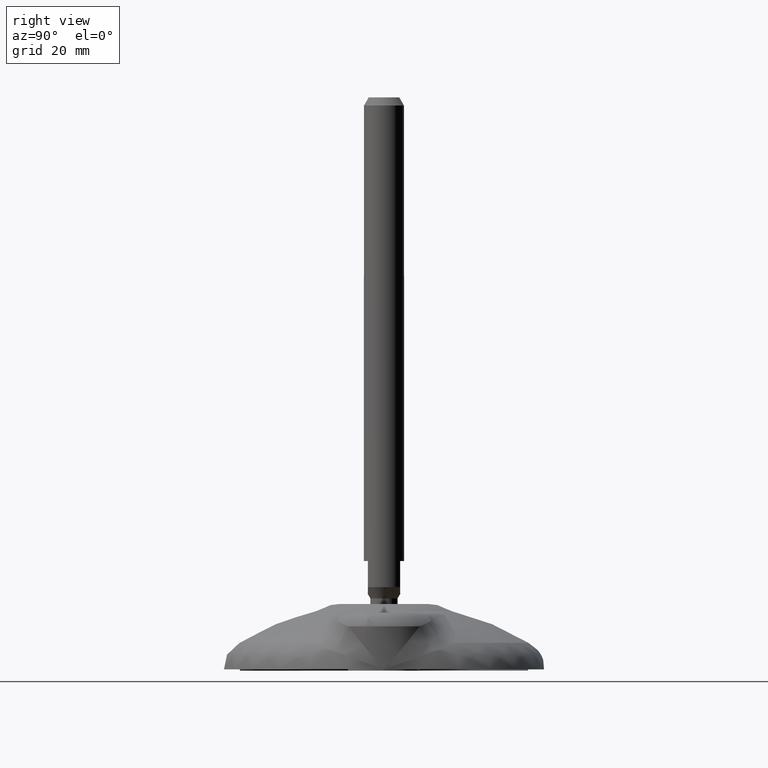
[diagram: clean part render]
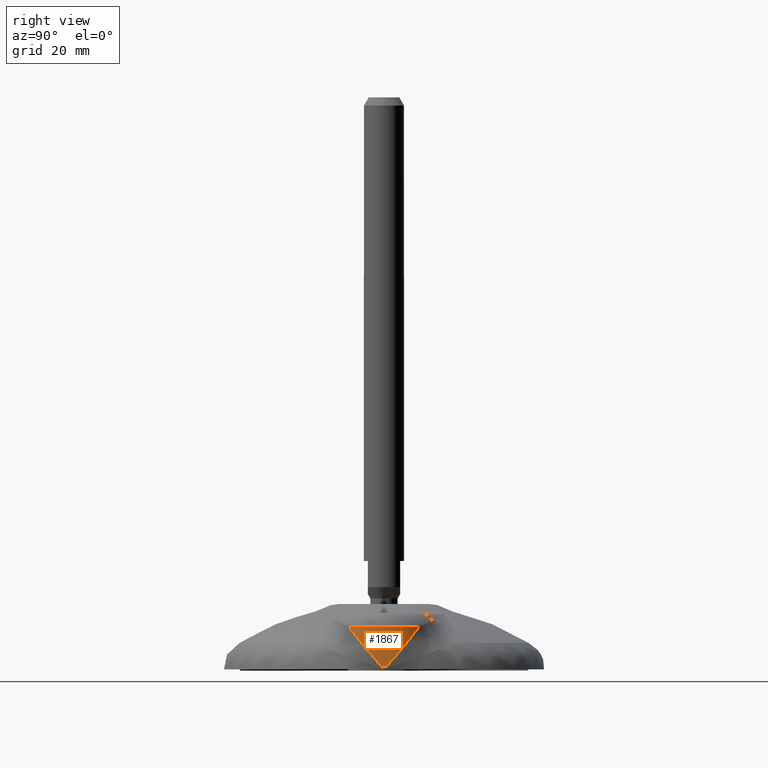
[diagram: same view with one face highlighted and labeled with its STEP entity id]
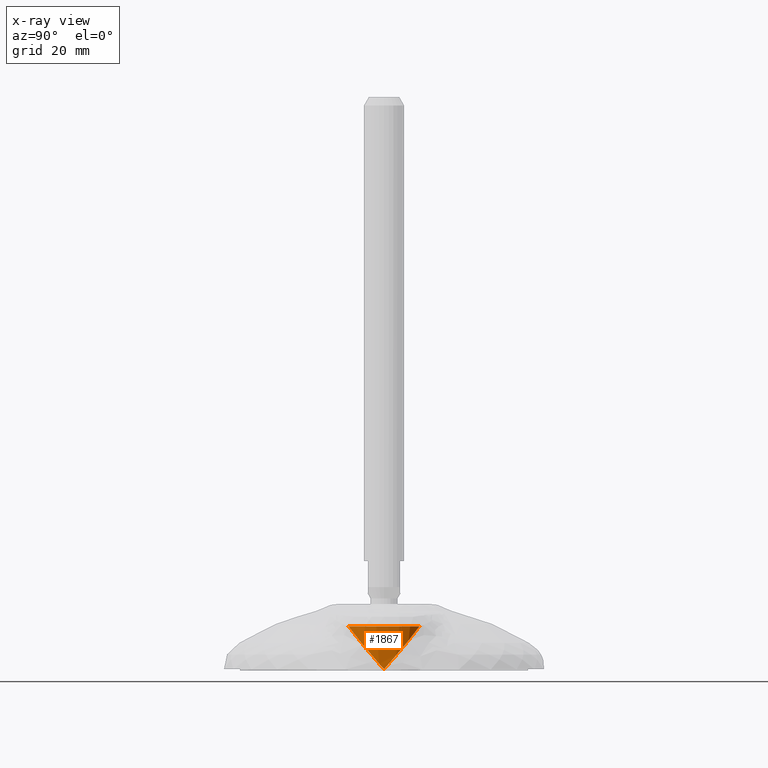
[diagram: x-ray of the same camera — body ghosted, the highlighted face saturated]
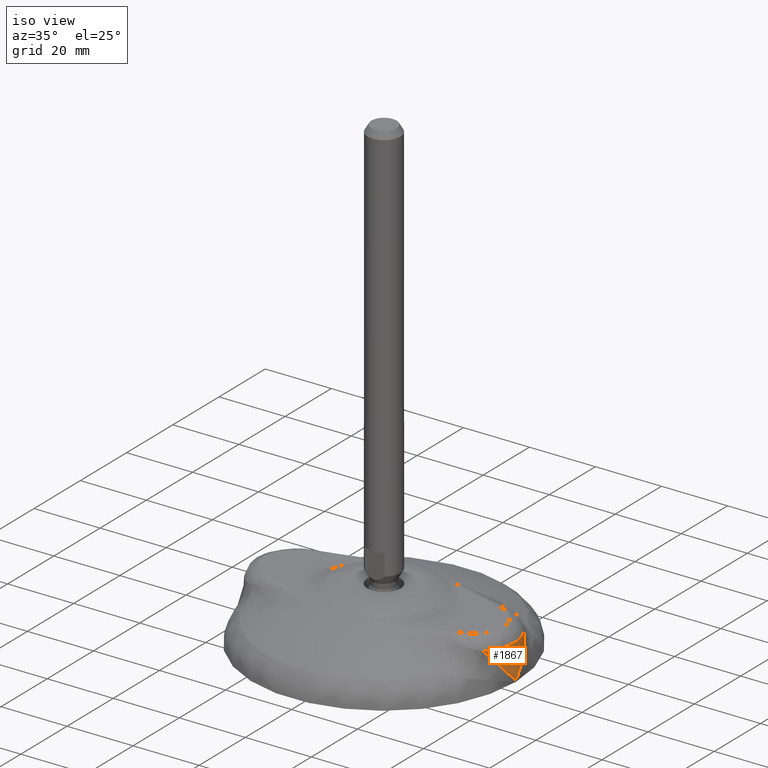
[diagram: same view with one face highlighted and labeled with its STEP entity id]
A machine part, right view. The second image highlights one B-rep face of the part: STEP entity #1867.
The next image is the same camera in x-ray: the body ghosted, the highlighted face saturated — about 0% of this face is hidden behind the body in this view.
A second angle (iso view) of the same face is appended — the face is thin or edge-on in the first view.
In plain terms, the highlighted face is a freeform B-spline surface patch.
Its self-contained STEP definition (entity closure, byte-faithful):
#1665=CARTESIAN_POINT('',(27.000022896699978,0.0,372.409588548589170));
#1666=CARTESIAN_POINT('',(27.000022896699978,0.0,372.409588548589230));
#1667=CARTESIAN_POINT('',(27.000022896699978,0.0,372.409588548589170));
#1668=CARTESIAN_POINT('',(27.000022896699978,0.0,372.409588548589230));
#1669=CARTESIAN_POINT('',(27.000022896699978,0.0,372.409588548589170));
#1670=CARTESIAN_POINT('',(27.000022896699978,0.0,372.409588548589230));
#1671=CARTESIAN_POINT('',(27.000022896699978,0.0,372.409588548589170));
#1672=CARTESIAN_POINT('',(27.000022896699978,0.0,372.409588548589230));
#1673=CARTESIAN_POINT('',(27.000022896699978,0.0,372.409588548589170));
#1674=CARTESIAN_POINT('',(13.356412018743518,0.003613416297616,-18.292321948395568));
#1675=CARTESIAN_POINT('',(13.360025435041134,13.647224294254078,-18.292321948395568));
#1676=CARTESIAN_POINT('',(27.003636312997592,13.643610877956460,-18.292321948395568));
#1677=CARTESIAN_POINT('',(40.647247190954054,13.639997461658844,-18.292321948395568));
#1678=CARTESIAN_POINT('',(40.643633774656436,-0.003613416297616,-18.292321948395568));
#1679=CARTESIAN_POINT('',(40.640020358358818,-13.647224294254078,-18.292321948395568));
#1680=CARTESIAN_POINT('',(26.996409480402363,-13.643610877956460,-18.292321948395568));
#1681=CARTESIAN_POINT('',(13.352798602445901,-13.639997461658844,-18.292321948395568));
#1682=CARTESIAN_POINT('',(13.356412018743518,0.003613416297616,-18.292321948395568));
#1690=(BOUNDED_SURFACE()B_SPLINE_SURFACE(2,1,((#1665,#1674),(#1666,#1675),(#1667,#1676),(#1668,#1677),(#1669,#1678),(#1670,#1679),(#1671,#1680),(#1672,#1681),(#1673,#1682)),.UNSPECIFIED.,.T.,.F.,.U.)B_SPLINE_SURFACE_WITH_KNOTS((3,2,2,2,3),(2,2),(0.0,0.250000000000000,0.500000000000000,0.750000000000000,1.0),(0.0,1.0),.UNSPECIFIED.)GEOMETRIC_REPRESENTATION_ITEM()RATIONAL_B_SPLINE_SURFACE(((1.0,1.0),(0.707106781186548,0.707106781186548),(1.0,1.0),(0.707106781186548,0.707106781186548),(1.0,1.0),(0.707106781186548,0.707106781186548),(1.0,1.0),(0.707106781186548,0.707106781186548),(1.0,1.0)))REPRESENTATION_ITEM('')SURFACE());
#1691=CARTESIAN_POINT('',(36.066250192417407,8.780379743001353,10.952148238458690));
#1692=VERTEX_POINT('',#1691);
#1693=CARTESIAN_POINT('',(36.058307408992100,-8.790435452422750,10.952148238458719));
#1694=VERTEX_POINT('',#1693);
#1695=CARTESIAN_POINT('',(36.067181513083916,8.781281697431407,10.952148238458753));
#1696=CARTESIAN_POINT('',(36.629084763783410,8.201083748937716,10.952148238458753));
#1697=CARTESIAN_POINT('',(37.135117625331972,7.566802076676548,10.952148238458760));
#1698=CARTESIAN_POINT('',(38.018052250675701,6.211530226746488,10.952148238458753));
#1699=CARTESIAN_POINT('',(38.394590328135799,5.490347134136302,10.952148238458753));
#1700=CARTESIAN_POINT('',(39.002775240274708,3.989237368428677,10.952148238458760));
#1701=CARTESIAN_POINT('',(39.234408188589136,3.209344969376574,10.952148238458753));
#1702=CARTESIAN_POINT('',(39.544221534632655,1.619616971677109,10.952148238458753));
#1703=CARTESIAN_POINT('',(39.622394858557456,0.809817670448327,10.952148238458753));
#1704=CARTESIAN_POINT('',(39.622394843136917,-0.809817910803280,10.952148238458760));
#1705=CARTESIAN_POINT('',(39.544221503791924,-1.619617210543510,10.952148238458753));
#1706=CARTESIAN_POINT('',(39.234408127476840,-3.209345202343516,10.952148238458753));
#1707=CARTESIAN_POINT('',(39.002775164311714,-3.989237596984869,10.952148238458753));
#1708=CARTESIAN_POINT('',(38.394590223588686,-5.490347351111450,10.952148238458760));
#1709=CARTESIAN_POINT('',(38.018052132395873,-6.211530436551582,10.952148238458753));
#1710=CARTESIAN_POINT('',(37.133956659776644,-7.568584087425556,10.952148238458760));
#1711=CARTESIAN_POINT('',(36.626419464434534,-8.204423667971129,10.952148238458753));
#1712=CARTESIAN_POINT('',(36.062741839397049,-8.785863595260405,10.952148238458753));
#1713=B_SPLINE_CURVE_WITH_KNOTS('',3,(#1695,#1696,#1697,#1698,#1699,#1700,#1701,#1702,#1703,#1704,#1705,#1706,#1707,#1708,#1709,#1710,#1711,#1712),.UNSPECIFIED.,.F.,.U.,(4,2,2,2,2,2,2,2,4),(0.000328251163024,0.125000000000000,0.250000000000000,0.375000000000000,0.500000000000000,0.625000000000000,0.750000000000000,0.875000000000000,1.0),.UNSPECIFIED.);
#1714=EDGE_CURVE('',#1692,#1694,#1713,.T.);
#1715=ORIENTED_EDGE('',*,*,#1714,.T.);
#1716=CARTESIAN_POINT('',(36.058307408992100,-8.790435452422750,10.952148238458719));
#1717=CARTESIAN_POINT('',(36.100599214174522,-8.749312333619665,10.896290452712568));
#1718=CARTESIAN_POINT('',(36.185750000593330,-8.666514593230625,10.783825771590932));
#1719=CARTESIAN_POINT('',(36.311506171181719,-8.539878937736063,10.613079506864320));
#1720=CARTESIAN_POINT('',(36.436821486321222,-8.410384126566559,10.439415591678101));
#1721=CARTESIAN_POINT('',(36.561417143832173,-8.277885506678233,10.262764637588740));
#1722=CARTESIAN_POINT('',(36.685274274348004,-8.142390512982601,10.083145597005162));
#1723=CARTESIAN_POINT('',(36.808301003773053,-8.003866658414797,9.900553283137237));
#1724=CARTESIAN_POINT('',(36.930423430866931,-7.862294077206052,9.714989104342882));
#1725=CARTESIAN_POINT('',(37.051560780626652,-7.717651250142675,9.526452667994116));
#1726=CARTESIAN_POINT('',(37.171632199708149,-7.569918983803538,9.334944073650629));
#1727=CARTESIAN_POINT('',(37.290554912328616,-7.419079405611889,9.140463286847956));
#1728=CARTESIAN_POINT('',(37.408244737649042,-7.265116321017688,8.943010310042144));
#1729=CARTESIAN_POINT('',(37.524615964963274,-7.108015199944350,8.742585135931572));
#1730=CARTESIAN_POINT('',(37.639581406746004,-6.947763265505230,8.539187760179043));
#1731=CARTESIAN_POINT('',(37.753052405821549,-6.784349555842087,8.332818177924494));
#1732=CARTESIAN_POINT('',(37.864938857794684,-6.617764994267397,8.123476384722842));
#1733=CARTESIAN_POINT('',(37.975149232136886,-6.448002458078483,7.911162376269078));
#1734=CARTESIAN_POINT('',(38.083590596577480,-6.275056848517778,7.695876148479480));
#1735=CARTESIAN_POINT('',(38.190168643481556,-6.098925161487280,7.477617697383018));
#1736=CARTESIAN_POINT('',(38.294787719171133,-5.919606557733732,7.256387019419996));
#1737=CARTESIAN_POINT('',(38.397350854061685,-5.737102437793807,7.032184110283774));
#1738=CARTESIAN_POINT('',(38.497759801683522,-5.551416501160179,6.805008969269719));
#1739=CARTESIAN_POINT('',(38.595915056373187,-5.362554867340903,6.574861582739764));
#1740=CARTESIAN_POINT('',(38.691715964531376,-5.170525963856196,6.341741986803802));
#1741=CARTESIAN_POINT('',(38.785060494007460,-4.975341299499766,6.105650029574017));
#1742=CARTESIAN_POINT('',(38.875846313115368,-4.777012881767734,5.866586272617899));
#1743=CARTESIAN_POINT('',(39.007969940432424,-4.474969541982508,5.503687052307585));
#1744=CARTESIAN_POINT('',(39.175680343723286,-4.058139931744774,5.005672488650504));
#1745=CARTESIAN_POINT('',(39.367439439435657,-3.514347678486113,4.361097142396369));
#1746=CARTESIAN_POINT('',(39.542090914566060,-2.936342247226098,3.681068799913442));
#1747=CARTESIAN_POINT('',(39.644848612748660,-2.526736485842858,3.202334109181626));
#1748=CARTESIAN_POINT('',(39.695681698772312,-2.299669102628000,2.937723840258371));
#1749=CARTESIAN_POINT('',(39.703038303269700,-2.266396272582230,2.898971583404351));
#1750=CARTESIAN_POINT('',(39.710307900007599,-2.233100980741280,2.860211926940386));
#1751=CARTESIAN_POINT('',(39.717490481950001,-2.199783064210688,2.821445167179874));
#1752=CARTESIAN_POINT('',(39.724585964295102,-2.166442854212577,2.782671224708006));
#1753=CARTESIAN_POINT('',(39.731594283830319,-2.133080549798815,2.743890120808712));
#1754=CARTESIAN_POINT('',(39.738515372304960,-2.099696385699887,2.705101849777689));
#1755=CARTESIAN_POINT('',(39.745349163567454,-2.066290587337899,2.666306413143746));
#1756=CARTESIAN_POINT('',(39.752095591653102,-2.032863382881556,2.627503810497152));
#1757=CARTESIAN_POINT('',(39.758754591297432,-1.999415000013371,2.588694041947715));
#1758=CARTESIAN_POINT('',(39.765326097799246,-1.965945666794155,2.549877107466006));
#1759=CARTESIAN_POINT('',(39.771810047058167,-1.932455611429365,2.511053007059913));
#1760=CARTESIAN_POINT('',(39.778206375565233,-1.898945062329778,2.472221740727319));
#1761=CARTESIAN_POINT('',(39.784515020406154,-1.865414248093283,2.433383308468792));
#1762=CARTESIAN_POINT('',(39.790735919261195,-1.831863397507810,2.394537710284187));
#1763=CARTESIAN_POINT('',(39.796869010405757,-1.798292739548576,2.355684946173533));
#1764=CARTESIAN_POINT('',(39.802914232711188,-1.764702503376886,2.316825016136826));
#1765=CARTESIAN_POINT('',(39.808871525645060,-1.731092918338481,2.277957920174070));
#1766=CARTESIAN_POINT('',(39.814740829271841,-1.697464213962018,2.239083658285259));
#1767=CARTESIAN_POINT('',(39.820522084253440,-1.663816619957524,2.200202230470396));
#1768=CARTESIAN_POINT('',(39.826215231849730,-1.630150366214842,2.161313636729482));
#1769=CARTESIAN_POINT('',(39.831820213919052,-1.596465682802074,2.122417877062515));
#1770=CARTESIAN_POINT('',(39.837336972918806,-1.562762799964035,2.083514951469497));
#1771=CARTESIAN_POINT('',(39.842765451905976,-1.529041948120695,2.044604859950424));
#1772=CARTESIAN_POINT('',(39.848105594537529,-1.495303357865621,2.005687602505303));
#1773=CARTESIAN_POINT('',(39.853357345071153,-1.461547259964419,1.966763179134127));
#1774=CARTESIAN_POINT('',(39.858520648365541,-1.427773885353179,1.927831589836898));
#1775=CARTESIAN_POINT('',(39.863595449881082,-1.393983465136909,1.888892834613618));
#1776=CARTESIAN_POINT('',(39.868581695680277,-1.360176230587974,1.849946913464287));
#1777=CARTESIAN_POINT('',(39.873479332428204,-1.326352413144527,1.810993826388899));
#1778=CARTESIAN_POINT('',(39.878288307393220,-1.292512244408957,1.772033573387462));
#1779=CARTESIAN_POINT('',(39.883008568447153,-1.258655956146305,1.733066154459971));
#1780=CARTESIAN_POINT('',(39.887640064066055,-1.224783780282706,1.694091569606427));
#1781=CARTESIAN_POINT('',(39.892182743330487,-1.190895948903818,1.655109818826831));
#1782=CARTESIAN_POINT('',(39.896636555926278,-1.156992694253245,1.616120902121184));
#1783=CARTESIAN_POINT('',(39.901001452144570,-1.123074248730968,1.577124819489482));
#1784=CARTESIAN_POINT('',(39.905277382882794,-1.089140844891774,1.538121570931728));
#1785=CARTESIAN_POINT('',(39.909464299644732,-1.055192715443674,1.499111156447922));
#1786=CARTESIAN_POINT('',(39.913562154541196,-1.021230093246327,1.460093576038061));
#1787=CARTESIAN_POINT('',(39.917570900290443,-0.987253211309464,1.421068829702149));
#1788=CARTESIAN_POINT('',(39.921490490218666,-0.953262302791310,1.382036917440183));
#1789=CARTESIAN_POINT('',(39.925320878260337,-0.919257600996993,1.342997839252165));
#1790=CARTESIAN_POINT('',(39.929062018958760,-0.885239339376973,1.303951595138093));
#1791=CARTESIAN_POINT('',(39.932713867466568,-0.851207751525453,1.264898185097971));
#1792=CARTESIAN_POINT('',(39.936276379545902,-0.817163071178783,1.225837609131790));
#1793=CARTESIAN_POINT('',(39.939749511569254,-0.783105532213905,1.186769867239561));
#1794=CARTESIAN_POINT('',(39.943133220519535,-0.749035368646715,1.147694959421276));
#1795=CARTESIAN_POINT('',(39.946427463990645,-0.714952814630537,1.108612885676935));
#1796=CARTESIAN_POINT('',(39.949632200188049,-0.680858104454439,1.069523646006565));
#1797=CARTESIAN_POINT('',(39.952747387928810,-0.646751472541863,1.030427240410052));
#1798=CARTESIAN_POINT('',(39.955772986642486,-0.612633153448282,0.991323668887806));
#1799=CARTESIAN_POINT('',(39.958708956371183,-0.578503381862394,0.952212931438324));
#1800=CARTESIAN_POINT('',(39.961555257769916,-0.544362392594077,0.913095028067202));
#1801=CARTESIAN_POINT('',(39.964311852108139,-0.510210420611837,0.873969958753546));
#1802=CARTESIAN_POINT('',(39.966978701265774,-0.476047700895451,0.834837723575364));
#1803=CARTESIAN_POINT('',(39.969555767749092,-0.441874468978464,0.795698322241449));
#1804=CARTESIAN_POINT('',(39.972043014634735,-0.407690958915537,0.756551755838850));
#1805=CARTESIAN_POINT('',(39.974440405779362,-0.373497410862519,0.717398020309728));
#1806=CARTESIAN_POINT('',(39.976747905039382,-0.339294042773355,0.678237130801545));
#1807=CARTESIAN_POINT('',(39.978965479185675,-0.305081156044695,0.639069030770542));
#1808=CARTESIAN_POINT('',(39.981093087024007,-0.270858741148930,0.599893931288164));
#1809=CARTESIAN_POINT('',(39.983130720010401,-0.236627949753857,0.560711044448605));
#1810=CARTESIAN_POINT('',(39.985078250639518,-0.202385599459075,0.521523311414987));
#1811=CARTESIAN_POINT('',(39.986935998395452,-0.168144686984668,0.482319753158756));
#1812=CARTESIAN_POINT('',(39.988702617123536,-0.133857814756267,0.443141353148242));
#1813=CARTESIAN_POINT('',(39.990382981233232,-0.099703030767249,0.403835124747470));
#1814=CARTESIAN_POINT('',(39.991958747399750,-0.065016820817390,0.364972149695114));
#1815=CARTESIAN_POINT('',(39.993068901708547,-0.041407738036625,0.335729852863429));
#1816=CARTESIAN_POINT('',(39.993672915921444,-0.025100076082802,0.319458449577117));
#1817=CARTESIAN_POINT('',(39.993831087384315,-0.017511334439852,0.315290303179807));
#1818=CARTESIAN_POINT('',(39.993905287657718,-0.009180888285310,0.313420531926943));
#1819=CARTESIAN_POINT('',(39.993977304513194,0.000085364641599,0.311443335772561));
#1820=CARTESIAN_POINT('',(39.993653376672782,0.009830139920653,0.320629016533556));
#1821=CARTESIAN_POINT('',(39.993168121158043,0.024142022041843,0.334076018384088));
#1822=CARTESIAN_POINT('',(39.992288210977001,0.046642174654110,0.357650780723303));
#1823=CARTESIAN_POINT('',(39.991024659965035,0.076996474339430,0.389872731092002));
#1824=CARTESIAN_POINT('',(39.989295019495962,0.115323737412412,0.431502336971471));
#1825=CARTESIAN_POINT('',(39.987039419539599,0.161553668004525,0.482249038050377));
#1826=CARTESIAN_POINT('',(39.984169274390815,0.215695535370134,0.542227779195409));
#1827=CARTESIAN_POINT('',(39.980586956613422,0.277729784581669,0.611401792804099));
#1828=CARTESIAN_POINT('',(39.976178699770543,0.347645138166407,0.689785332011066));
#1829=CARTESIAN_POINT('',(39.970817080368953,0.425424755068576,0.777374859721541));
#1830=CARTESIAN_POINT('',(39.964360270610314,0.511050010361483,0.874172203235507));
#1831=CARTESIAN_POINT('',(39.956652378994960,0.604498553293950,0.980177257060101));
#1832=CARTESIAN_POINT('',(39.947523460546051,0.705744265405716,1.095390349123273));
#1833=CARTESIAN_POINT('',(39.936789669150031,0.814756403162179,1.219811694621073));
#1834=CARTESIAN_POINT('',(39.924253331157601,0.931499788354815,1.353441015698325));
#1835=CARTESIAN_POINT('',(39.909703321836147,1.055931194519574,1.496280073592921));
#1836=CARTESIAN_POINT('',(39.892914349098795,1.188011024804045,1.648322051796589));
#1837=CARTESIAN_POINT('',(39.870900942121203,1.347586173342698,1.832616972831723));
#1838=CARTESIAN_POINT('',(39.843191927897578,1.530173590243281,2.043944092353540));
#1839=CARTESIAN_POINT('',(39.809383721775518,1.731329673452300,2.277026699054817));
#1840=CARTESIAN_POINT('',(39.773423248367763,1.926692983248086,2.503766017377636));
#1841=CARTESIAN_POINT('',(39.735555558722368,2.116284809524805,2.724151312555246));
#1842=CARTESIAN_POINT('',(39.664496931226630,2.446687290907944,3.108844467498317));
#1843=CARTESIAN_POINT('',(39.549892039836152,2.908123123067474,3.647972940167970));
#1844=CARTESIAN_POINT('',(39.375791370795959,3.488831277716192,4.330964948625935));
#1845=CARTESIAN_POINT('',(39.184388196589268,4.035065533240216,4.978212157280575));
#1846=CARTESIAN_POINT('',(38.993654622452695,4.511626844452972,5.547407897828045));
#1847=CARTESIAN_POINT('',(38.809144231129359,4.927184091892876,6.047186572110602));
#1848=CARTESIAN_POINT('',(38.634205361574615,5.290035871075715,6.486349241903978));
#1849=CARTESIAN_POINT('',(38.450951788971494,5.641880318703650,6.915175782876093));
#1850=CARTESIAN_POINT('',(38.260034845432067,5.982667260298763,7.333663778724665));
#1851=CARTESIAN_POINT('',(38.062093025535418,6.312370692348087,7.741813961485579));
#1852=CARTESIAN_POINT('',(37.857748534455702,6.630993494508488,8.139626215731521));
#1853=CARTESIAN_POINT('',(37.647607754868815,6.938564454574250,8.527100789456362));
#1854=CARTESIAN_POINT('',(37.432258487635764,7.235135967190099,8.904237361183764));
#1855=CARTESIAN_POINT('',(37.212276611913850,7.520786466069114,9.271037519584947));
#1856=CARTESIAN_POINT('',(36.988199899568158,7.795604059032518,9.627496049481273));
#1857=CARTESIAN_POINT('',(36.760620563909164,8.059738589532987,9.973632306672128));
#1858=CARTESIAN_POINT('',(36.529850227551698,8.313207057007109,10.309377150278809));
#1859=CARTESIAN_POINT('',(36.298652632534399,8.554990764761826,10.632843706488860));
#1860=CARTESIAN_POINT('',(36.140442691522111,8.710008615605592,10.843065478972800));
#1861=CARTESIAN_POINT('',(36.063086113057189,8.785756185766962,10.945801747193254));
#1862=B_SPLINE_CURVE_WITH_KNOTS('',3,(#1716,#1717,#1718,#1719,#1720,#1721,#1722,#1723,#1724,#1725,#1726,#1727,#1728,#1729,#1730,#1731,#1732,#1733,#1734,#1735,#1736,#1737,#1738,#1739,#1740,#1741,#1742,#1743,#1744,#1745,#1746,#1747,#1748,#1749,#1750,#1751,#1752,#1753,#1754,#1755,#1756,#1757,#1758,#1759,#1760,#1761,#1762,#1763,#1764,#1765,#1766,#1767,#1768,#1769,#1770,#1771,#1772,#1773,#1774,#1775,#1776,#1777,#1778,#1779,#1780,#1781,#1782,#1783,#1784,#1785,#1786,#1787,#1788,#1789,#1790,#1791,#1792,#1793,#1794,#1795,#1796,#1797,#1798,#1799,#1800,#1801,#1802,#1803,#1804,#1805,#1806,#1807,#1808,#1809,#1810,#1811,#1812,#1813,#1814,#1815,#1816,#1817,#1818,#1819,#1820,#1821,#1822,#1823,#1824,#1825,#1826,#1827,#1828,#1829,#1830,#1831,#1832,#1833,#1834,#1835,#1836,#1837,#1838,#1839,#1840,#1841,#1842,#1843,#1844,#1845,#1846,#1847,#1848,#1849,#1850,#1851,#1852,#1853,#1854,#1855,#1856,#1857,#1858,#1859,#1860,#1861),.UNSPECIFIED.,.F.,.U.,(4,1,1,1,1,1,1,1,1,1,1,1,1,1,1,1,1,1,1,1,1,1,1,1,1,1,1,1,1,1,1,1,1,1,1,1,1,1,1,1,1,1,1,1,1,1,1,1,1,1,1,1,1,1,1,1,1,1,1,1,1,1,1,1,1,1,1,1,1,1,1,1,1,1,1,1,1,1,1,1,1,1,1,1,1,1,1,1,1,1,1,1,1,1,1,1,1,1,1,1,1,1,1,1,1,1,1,1,1,1,1,1,1,1,1,1,1,1,1,1,1,1,1,1,1,1,1,1,1,1,1,1,1,1,1,1,1,1,1,1,1,1,1,4),(0.0,0.008392641549282,0.016897836944303,0.025515795525179,0.034246721532213,0.043090814391308,0.052048268982613,0.061119275893560,0.070304021657355,0.079602688977878,0.089015456941904,0.098542501219492,0.108183994253288,0.117940105437494,0.127811001287129,0.137796845598233,0.147897799599567,0.158114022096342,0.168445669606481,0.178892896489862,0.189455855070981,0.200134695755425,0.210929567140526,0.221840616120551,0.232867987986741,0.244011826522503,0.255272274094043,0.283518255065136,0.313294659832650,0.344605321683128,0.377454137749469,0.379230907609732,0.381007944111701,0.382785247273177,0.384562817111953,0.386340653645823,0.388118756892576,0.389897126869996,0.391675763595867,0.393454667087968,0.395233837364075,0.397013274441960,0.398792978339392,0.400572949074138,0.402353186663960,0.404133691126618,0.405914462479868,0.407695500741463,0.409476805929153,0.411258378060684,0.413040217153800,0.414822323226239,0.416604696295740,0.418387336380035,0.420170243496855,0.421953417663925,0.423736858898971,0.425520567219713,0.427304542643867,0.429088785189148,0.430873294873266,0.432658071713930,0.434443115728842,0.436228426935704,0.438014005352214,0.439799850996067,0.441585963884954,0.443372344036563,0.445158991468578,0.446945906198682,0.448733088244553,0.450520537623867,0.452308254354294,0.454096238453505,0.455884489939165,0.457673008828936,0.459461795140478,0.461250848891446,0.463040170099494,0.464829758782270,0.466619614957423,0.468409738642594,0.470200129855424,0.471990788613550,0.473781714934606,0.475572908836221,0.477364370336024,0.479156099451639,0.480948096200687,0.482740360600785,0.484532892669548,0.486325692424589,0.488118759883514,0.489912095063929,0.491705697983437,0.493499568659637,0.495293707110122,0.497088113352488,0.498882787404322,0.499176206039828,0.499462137598607,0.499757045695575,0.500076006333122,0.500356916544874,0.501051321637161,0.502162988091156,0.503692571619533,0.505640269787732,0.508006136337315,0.510790159640462,0.513992289946660,0.517612450898574,0.521650545089634,0.526106457018240,0.530980054779120,0.536271191090977,0.541979703952467,0.548105417079082,0.554648140205263,0.561607669300665,0.568983786730069,0.579935071096587,0.590600842261771,0.600981330841137,0.611076762155572,0.620887356320570,0.653881060168328,0.685323466531875,0.715218514896835,0.743570078251223,0.764494978709545,0.785014572358205,0.805129793146397,0.824841593968474,0.844150948929594,0.863058855835060,0.881566338930450,0.899674451923487,0.917384281322987,0.934696950135386,0.951613621965273,0.968135505573381,0.984263859953586,0.999682506043298),.UNSPECIFIED.);
#1863=EDGE_CURVE('',#1694,#1692,#1862,.T.);
#1864=ORIENTED_EDGE('',*,*,#1863,.T.);
#1865=EDGE_LOOP('',(#1715,#1864));
#1866=FACE_OUTER_BOUND('',#1865,.T.);
#1867=ADVANCED_FACE('',(#1866),#1690,.T.);